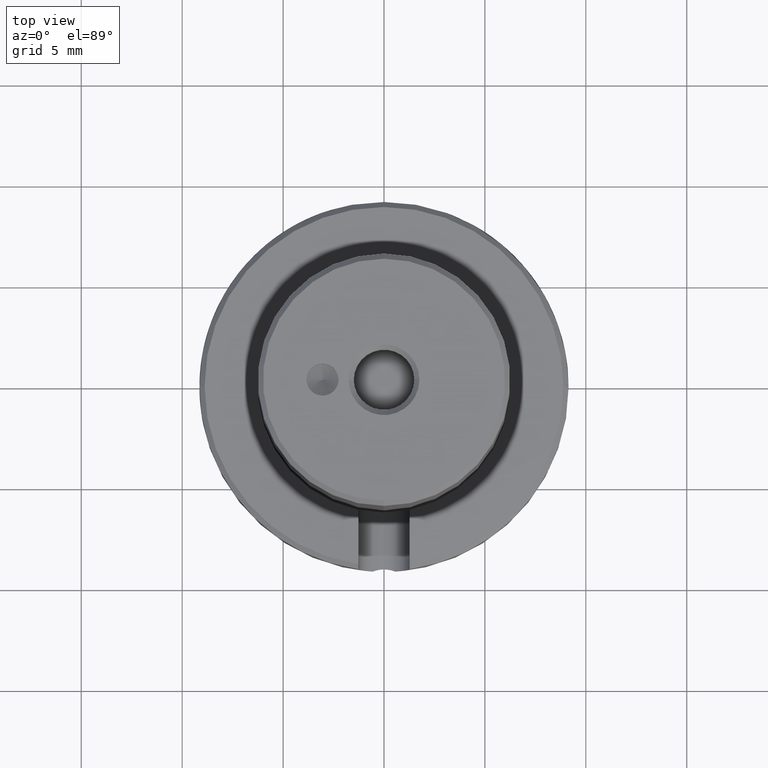
[diagram: clean part render]
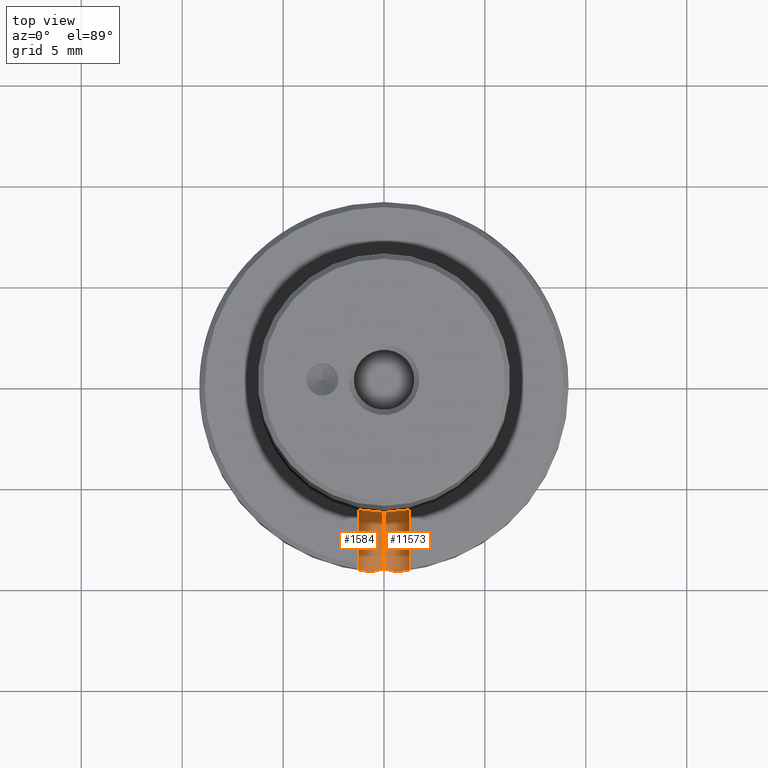
[diagram: same view with one multi-face feature highlighted, each face labeled with its STEP entity id]
A machine part, top view. The highlighted faces form ONE feature: a constant-radius fillet chain: 2 tangent blend faces with common blend radius 1.27 mm. The faces share edges in the B-rep.
Their STEP definitions:
[1] entity #1584 (Cylinder):
#28 = ORIENTED_EDGE ( 'NONE', *, *, #8409, .T. ) ;
#801 = VECTOR ( 'NONE', #1116, 39.37007874015748143 ) ;
#1116 = DIRECTION ( 'NONE',  ( 1.110223024625156294E-16, 1.000000000000000000, -1.280132303506366718E-34 ) ) ;
#1584 = ADVANCED_FACE ( 'NONE', ( #35501 ), #23749, .F. ) ;
#4024 = CARTESIAN_POINT ( 'NONE',  ( -0.05000000000000003053, -0.2039607805437114729, -0.4149999999999998690 ) ) ;
#4610 = CARTESIAN_POINT ( 'NONE',  ( -0.04483373836243605831, -0.3572059868942600858, -0.4376173513860790454 ) ) ;
#4905 = CARTESIAN_POINT ( 'NONE',  ( -6.661338147750938996E-17, -0.6000000000000000888, -0.4149999999999998690 ) ) ;
#6033 = ORIENTED_EDGE ( 'NONE', *, *, #26374, .F. ) ;
#6057 = DIRECTION ( 'NONE',  ( 1.110223024625156294E-16, 1.000000000000000000, -1.280132303506366718E-34 ) ) ;
#6692 = LINE ( 'NONE', #7208, #801 ) ;
#7208 = CARTESIAN_POINT ( 'NONE',  ( -6.661338147750938996E-17, -0.6000000000000000888, -0.4649999999999999134 ) ) ;
#8409 = EDGE_CURVE ( 'NONE', #30698, #9348, #34448, .T. ) ;
#9337 = CARTESIAN_POINT ( 'NONE',  ( -0.05000000000000003053, -0.2039607805437114729, -0.4149999999999998690 ) ) ;
#9348 = VERTEX_POINT ( 'NONE', #9337 ) ;
#9836 = CARTESIAN_POINT ( 'NONE',  ( -0.03767119428155050326, -0.2066068798607772761, -0.4480395401917243170 ) ) ;
#11033 = VERTEX_POINT ( 'NONE', #23372 ) ;
#11726 = CARTESIAN_POINT ( 'NONE',  ( -0.05000000000000007216, -0.6000000000000000888, -0.4149999999999998690 ) ) ;
#12748 = CARTESIAN_POINT ( 'NONE',  ( -0.05000000000000004441, -0.3565108693995177047, -0.4149999999999998690 ) ) ;
#12761 = CARTESIAN_POINT ( 'NONE',  ( -0.05000000000000003747, -0.2039607805437113897, -0.4216275093016600972 ) ) ;
#13090 = CARTESIAN_POINT ( 'NONE',  ( -0.05000000000000004441, -0.3565108693995176492, -0.4197166794278981983 ) ) ;
#13626 = DIRECTION ( 'NONE',  ( 0.000000000000000000, 0.000000000000000000, -1.000000000000000000 ) ) ;
#14919 = B_SPLINE_CURVE_WITH_KNOTS ( 'NONE', 3,
 ( #25250, #33813, #36718, #36474, #36851, #24740 ),
 .UNSPECIFIED., .F., .F.,
 ( 4, 2, 4 ),
 ( 5.421010862427522170E-19, 0.0002923140196767658118, 0.0005846280393535310815 ),
 .UNSPECIFIED. ) ;
#15272 = CARTESIAN_POINT ( 'NONE',  ( -0.006596096511052951770, -0.2099209550107142552, -0.4646708816115741048 ) ) ;
#15655 = CARTESIAN_POINT ( 'NONE',  ( -0.01301274856684529573, -0.2096210490779241431, -0.4633877396040589347 ) ) ;
#17858 = AXIS2_PLACEMENT_3D ( 'NONE', #4905, #28066, #13626 ) ;
#18577 = CARTESIAN_POINT ( 'NONE',  ( -0.04491758642352890879, -0.2051440009307403389, -0.4372052964879597492 ) ) ;
#18657 = CARTESIAN_POINT ( 'NONE',  ( -0.04934566155682462707, -0.3566044096293785604, -0.4243204115745650706 ) ) ;
#19142 = CARTESIAN_POINT ( 'NONE',  ( -0.03016279836351788354, -0.3588321219011369467, -0.4559470455643367393 ) ) ;
#19826 = CARTESIAN_POINT ( 'NONE',  ( -0.02179449471770364757, -0.3593396721766188850, -0.4599999999999998535 ) ) ;
#20182 = ORIENTED_EDGE ( 'NONE', *, *, #27085, .T. ) ;
#20533 = LINE ( 'NONE', #11726, #24642 ) ;
#21330 = CARTESIAN_POINT ( 'NONE',  ( -0.03972991269547765381, -0.2062157585500014045, -0.4455302246046468073 ) ) ;
#23372 = CARTESIAN_POINT ( 'NONE',  ( 1.960760364489759588E-14, -0.3549999999998788014, -0.4650000000001408562 ) ) ;
#23749 = CYLINDRICAL_SURFACE ( 'NONE', #17858, 0.05000000000000000971 ) ;
#24063 = EDGE_CURVE ( 'NONE', #28658, #11033, #14919, .T. ) ;
#24642 = VECTOR ( 'NONE', #6057, 39.37007874015748143 ) ;
#24740 = CARTESIAN_POINT ( 'NONE',  ( 1.960760364489759588E-14, -0.3549999999998788014, -0.4650000000001408562 ) ) ;
#24955 = CARTESIAN_POINT ( 'NONE',  ( -0.02179449471770364757, -0.3593396721766188850, -0.4599999999999998535 ) ) ;
#25250 = CARTESIAN_POINT ( 'NONE',  ( -0.02179449471770364757, -0.3593396721766188850, -0.4599999999999998535 ) ) ;
#26374 = EDGE_CURVE ( 'NONE', #28803, #9348, #20533, .T. ) ;
#26474 = CARTESIAN_POINT ( 'NONE',  ( -2.649936508408381124E-14, -0.2100000000000576961, -0.4650000000002421086 ) ) ;
#27085 = EDGE_CURVE ( 'NONE', #28803, #28658, #33614, .T. ) ;
#27203 = CARTESIAN_POINT ( 'NONE',  ( -0.01613299314652271582, -0.2094015199860684850, -0.4624394620640184250 ) ) ;
#28066 = DIRECTION ( 'NONE',  ( 1.110223024625156417E-16, 1.000000000000000000, -1.280132303506366718E-34 ) ) ;
#28615 = ORIENTED_EDGE ( 'NONE', *, *, #33965, .T. ) ;
#28658 = VERTEX_POINT ( 'NONE', #19826 ) ;
#28803 = VERTEX_POINT ( 'NONE', #12748 ) ;
#29424 = EDGE_LOOP ( 'NONE', ( #31347, #28615, #28, #6033, #20182 ) ) ;
#29704 = CARTESIAN_POINT ( 'NONE',  ( -2.649936508408381124E-14, -0.2100000000000576961, -0.4650000000002421086 ) ) ;
#30071 = CARTESIAN_POINT ( 'NONE',  ( -0.04334754227458928466, -0.2054857552627320783, -0.4401306815656312321 ) ) ;
#30410 = CARTESIAN_POINT ( 'NONE',  ( -0.05000000000000004441, -0.3565108693995177047, -0.4149999999999998690 ) ) ;
#30698 = VERTEX_POINT ( 'NONE', #26474 ) ;
#31347 = ORIENTED_EDGE ( 'NONE', *, *, #24063, .T. ) ;
#32597 = CARTESIAN_POINT ( 'NONE',  ( -0.003271902377127057157, -0.2099999999999993539, -0.4649999999999972489 ) ) ;
#32975 = CARTESIAN_POINT ( 'NONE',  ( -0.02522889862367792488, -0.2085679333828729387, -0.4586647087405027468 ) ) ;
#33285 = CARTESIAN_POINT ( 'NONE',  ( -0.04676186246396404900, -0.3569524162973260473, -0.4333082660375381368 ) ) ;
#33416 = CARTESIAN_POINT ( 'NONE',  ( -0.03742697703101410811, -0.3580837137666759706, -0.4494333574809501464 ) ) ;
#33614 = B_SPLINE_CURVE_WITH_KNOTS ( 'NONE', 3,
 ( #30410, #13090, #18657, #33285, #4610, #33416, #19142, #24955 ),
 .UNSPECIFIED., .F., .F.,
 ( 4, 2, 2, 4 ),
 ( 0.000000000000000000, 0.0003542758002524983604, 0.0007085516005049967208, 0.001417103201009988671 ),
 .UNSPECIFIED. ) ;
#33813 = CARTESIAN_POINT ( 'NONE',  ( -0.01852909387166324501, -0.3579533116687075300, -0.4615815058108934110 ) ) ;
#33965 = EDGE_CURVE ( 'NONE', #11033, #30698, #6692, .T. ) ;
#34448 = B_SPLINE_CURVE_WITH_KNOTS ( 'NONE', 3,
 ( #29704, #32597, #15272, #15655, #27203, #32975, #35888, #9836, #21330, #30071, #18577, #35766, #12761, #4024 ),
 .UNSPECIFIED., .F., .F.,
 ( 4, 2, 2, 2, 2, 2, 4 ),
 ( 0.001992974357543220512, 0.002241820607780957778, 0.002490666858018695043, 0.002988359358494166538, 0.003237205608731902502, 0.003486051858969638033, 0.003983744359445104757 ),
 .UNSPECIFIED. ) ;
#35501 = FACE_OUTER_BOUND ( 'NONE', #29424, .T. ) ;
#35766 = CARTESIAN_POINT ( 'NONE',  ( -0.04867764712357344065, -0.2042965722239608040, -0.4281584846941586808 ) ) ;
#35888 = CARTESIAN_POINT ( 'NONE',  ( -0.03072233819223758183, -0.2077937070115881135, -0.4549882272014798001 ) ) ;
#36474 = CARTESIAN_POINT ( 'NONE',  ( -0.007683217235215217093, -0.3553845779325037757, -0.4645512670091759833 ) ) ;
#36718 = CARTESIAN_POINT ( 'NONE',  ( -0.01506343245227155514, -0.3568737059163883951, -0.4628273236973806104 ) ) ;
#36851 = CARTESIAN_POINT ( 'NONE',  ( -0.003839027753163199840, -0.3549999999999976508, -0.4650000000000024114 ) ) ;
[2] entity #11573 (Cylinder):
#801 = VECTOR ( 'NONE', #1116, 39.37007874015748143 ) ;
#920 = CARTESIAN_POINT ( 'NONE',  ( 0.03993795295620777147, -0.2062200612927541088, -0.4457766070939605529 ) ) ;
#1116 = DIRECTION ( 'NONE',  ( 1.110223024625156294E-16, 1.000000000000000000, -1.280132303506366718E-34 ) ) ;
#2326 = CARTESIAN_POINT ( 'NONE',  ( -6.661338147750938996E-17, -0.6000000000000000888, -0.4149999999999998690 ) ) ;
#2622 = VERTEX_POINT ( 'NONE', #6240 ) ;
#3689 = CARTESIAN_POINT ( 'NONE',  ( 0.04868467335782344918, -0.2042950097092343931, -0.4281430295888941084 ) ) ;
#3763 = EDGE_CURVE ( 'NONE', #26537, #30698, #27940, .T. ) ;
#3823 = CARTESIAN_POINT ( 'NONE',  ( 0.02518009243522989493, -0.2085724023745952616, -0.4586849429964501845 ) ) ;
#4211 = CARTESIAN_POINT ( 'NONE',  ( 0.04999999999999996114, -0.3565108693995177047, -0.4149999999999998690 ) ) ;
#4702 = CARTESIAN_POINT ( 'NONE',  ( 0.03986473624857889142, -0.3577946310650490513, -0.4455350215215695964 ) ) ;
#4788 = CARTESIAN_POINT ( 'NONE',  ( 0.003825891619551443669, -0.3550000000000020917, -0.4649999999999973044 ) ) ;
#4832 = CARTESIAN_POINT ( 'NONE',  ( 0.04999999999999996114, -0.3565108693995177047, -0.4149999999999998690 ) ) ;
#5034 = DIRECTION ( 'NONE',  ( 1.110223024625156294E-16, 1.000000000000000000, -1.280132303506366718E-34 ) ) ;
#5275 = DIRECTION ( 'NONE',  ( 1.110223024625156417E-16, 1.000000000000000000, -1.280132303506366718E-34 ) ) ;
#6240 = CARTESIAN_POINT ( 'NONE',  ( 0.02179449471770352614, -0.3593396721766189406, -0.4599999999999997979 ) ) ;
#6692 = LINE ( 'NONE', #7208, #801 ) ;
#6809 = CARTESIAN_POINT ( 'NONE',  ( 0.04999999999999998196, -0.2039607805437114729, -0.4149999999999998690 ) ) ;
#7208 = CARTESIAN_POINT ( 'NONE',  ( -6.661338147750938996E-17, -0.6000000000000000888, -0.4649999999999999134 ) ) ;
#10541 = AXIS2_PLACEMENT_3D ( 'NONE', #2326, #5275, #14838 ) ;
#10726 = CARTESIAN_POINT ( 'NONE',  ( 0.007696619188072678121, -0.3553887022044189270, -0.4645465090612361236 ) ) ;
#11033 = VERTEX_POINT ( 'NONE', #23372 ) ;
#11573 = ADVANCED_FACE ( 'NONE', ( #22601 ), #14018, .F. ) ;
#13116 = EDGE_CURVE ( 'NONE', #11033, #2622, #21402, .T. ) ;
#14018 = CYLINDRICAL_SURFACE ( 'NONE', #10541, 0.05000000000000000971 ) ;
#14838 = DIRECTION ( 'NONE',  ( 0.000000000000000000, 0.000000000000000000, -1.000000000000000000 ) ) ;
#15336 = CARTESIAN_POINT ( 'NONE',  ( 0.04365394526332137815, -0.2054287747006272591, -0.4402442015060775704 ) ) ;
#15417 = ORIENTED_EDGE ( 'NONE', *, *, #21326, .T. ) ;
#15650 = ORIENTED_EDGE ( 'NONE', *, *, #13116, .T. ) ;
#16287 = CARTESIAN_POINT ( 'NONE',  ( 1.960760364489759588E-14, -0.3549999999998788014, -0.4650000000001408562 ) ) ;
#16526 = CARTESIAN_POINT ( 'NONE',  ( 0.04999999999999993339, -0.6000000000000000888, -0.4149999999999998690 ) ) ;
#16631 = CARTESIAN_POINT ( 'NONE',  ( 0.01315009358192721980, -0.2096748891168023210, -0.4636773698800208954 ) ) ;
#18148 = CARTESIAN_POINT ( 'NONE',  ( 0.04999999999999996808, -0.2039607805437114452, -0.4216347155912083533 ) ) ;
#18489 = CARTESIAN_POINT ( 'NONE',  ( 0.02987657406324263978, -0.3587751266596150845, -0.4553631781876300577 ) ) ;
#19364 = CARTESIAN_POINT ( 'NONE',  ( 0.04675101698376748355, -0.3569538209224907832, -0.4333274458101614157 ) ) ;
#21032 = ORIENTED_EDGE ( 'NONE', *, *, #34505, .T. ) ;
#21149 = CARTESIAN_POINT ( 'NONE',  ( 0.03074280548131445162, -0.2077898786684701793, -0.4549639780513194398 ) ) ;
#21326 = EDGE_CURVE ( 'NONE', #2622, #24543, #23146, .T. ) ;
#21359 = CARTESIAN_POINT ( 'NONE',  ( 0.04480823090213225529, -0.3572092071301699034, -0.4376673152118347732 ) ) ;
#21391 = CARTESIAN_POINT ( 'NONE',  ( -2.649936508408381124E-14, -0.2100000000000576961, -0.4650000000002421086 ) ) ;
#21402 = B_SPLINE_CURVE_WITH_KNOTS ( 'NONE', 3,
 ( #16287, #4788, #10726, #30974, #33845, #36131 ),
 .UNSPECIFIED., .F., .F.,
 ( 4, 2, 4 ),
 ( 0.0005846280393535310815, 0.0008759418380667162657, 0.001167255636779901450 ),
 .UNSPECIFIED. ) ;
#22601 = FACE_OUTER_BOUND ( 'NONE', #32251, .T. ) ;
#23146 = B_SPLINE_CURVE_WITH_KNOTS ( 'NONE', 3,
 ( #25320, #27861, #18489, #24303, #4702, #21359, #19364, #30627, #33884, #4832 ),
 .UNSPECIFIED., .F., .F.,
 ( 4, 2, 2, 2, 4 ),
 ( 0.002558164385219061868, 0.002912238872110008928, 0.003266313359000955555, 0.003620387845891902615, 0.003974462332782849674 ),
 .UNSPECIFIED. ) ;
#23372 = CARTESIAN_POINT ( 'NONE',  ( 1.960760364489759588E-14, -0.3549999999998788014, -0.4650000000001408562 ) ) ;
#23839 = CARTESIAN_POINT ( 'NONE',  ( 0.04999999999999998196, -0.2039607805437114729, -0.4149999999999998690 ) ) ;
#24303 = CARTESIAN_POINT ( 'NONE',  ( 0.03683256386740612481, -0.3581278590480396762, -0.4491344118173469235 ) ) ;
#24543 = VERTEX_POINT ( 'NONE', #4211 ) ;
#25320 = CARTESIAN_POINT ( 'NONE',  ( 0.02179449471770352614, -0.3593396721766189406, -0.4599999999999997979 ) ) ;
#25349 = CARTESIAN_POINT ( 'NONE',  ( 0.006551050630298972839, -0.2100000000000013523, -0.4650000000000055755 ) ) ;
#26474 = CARTESIAN_POINT ( 'NONE',  ( -2.649936508408381124E-14, -0.2100000000000576961, -0.4650000000002421086 ) ) ;
#26537 = VERTEX_POINT ( 'NONE', #6809 ) ;
#27861 = CARTESIAN_POINT ( 'NONE',  ( 0.02602654731741378333, -0.3590829917843018082, -0.4579503233771234916 ) ) ;
#27940 = B_SPLINE_CURVE_WITH_KNOTS ( 'NONE', 3,
 ( #23839, #18148, #3689, #15336, #920, #21149, #3823, #16631, #25349, #21391 ),
 .UNSPECIFIED., .F., .F.,
 ( 4, 2, 2, 2, 4 ),
 ( 0.000000000000000000, 0.0004982435893858051280, 0.0009964871787716102561, 0.001494730768157415384, 0.001992974357543220512 ),
 .UNSPECIFIED. ) ;
#29220 = LINE ( 'NONE', #16526, #32841 ) ;
#30436 = ORIENTED_EDGE ( 'NONE', *, *, #33965, .F. ) ;
#30627 = CARTESIAN_POINT ( 'NONE',  ( 0.04932613292713722980, -0.3566070953733764815, -0.4244066715364845366 ) ) ;
#30698 = VERTEX_POINT ( 'NONE', #26474 ) ;
#30974 = CARTESIAN_POINT ( 'NONE',  ( 0.01500903852750759201, -0.3568613185114531405, -0.4628416478558289304 ) ) ;
#32251 = EDGE_LOOP ( 'NONE', ( #30436, #15650, #15417, #21032, #34092 ) ) ;
#32841 = VECTOR ( 'NONE', #5034, 39.37007874015748143 ) ;
#33845 = CARTESIAN_POINT ( 'NONE',  ( 0.01853832925247422131, -0.3579572326474265709, -0.4615770329118218940 ) ) ;
#33884 = CARTESIAN_POINT ( 'NONE',  ( 0.04999999999999995420, -0.3565108693995178157, -0.4197139925599543964 ) ) ;
#33965 = EDGE_CURVE ( 'NONE', #11033, #30698, #6692, .T. ) ;
#34092 = ORIENTED_EDGE ( 'NONE', *, *, #3763, .T. ) ;
#34505 = EDGE_CURVE ( 'NONE', #24543, #26537, #29220, .T. ) ;
#36131 = CARTESIAN_POINT ( 'NONE',  ( 0.02179449471770352614, -0.3593396721766189406, -0.4599999999999997979 ) ) ;